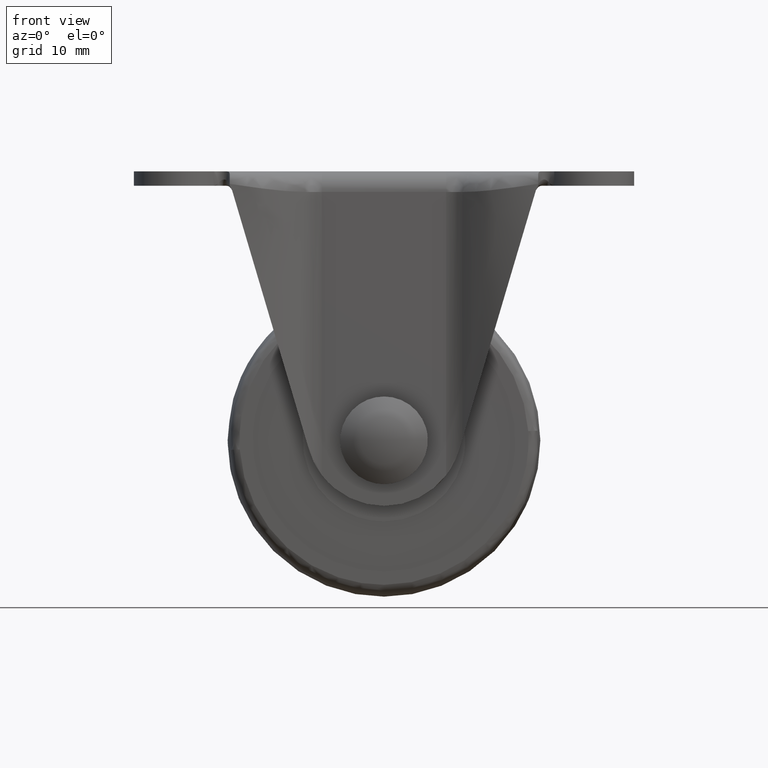
[diagram: clean part render]
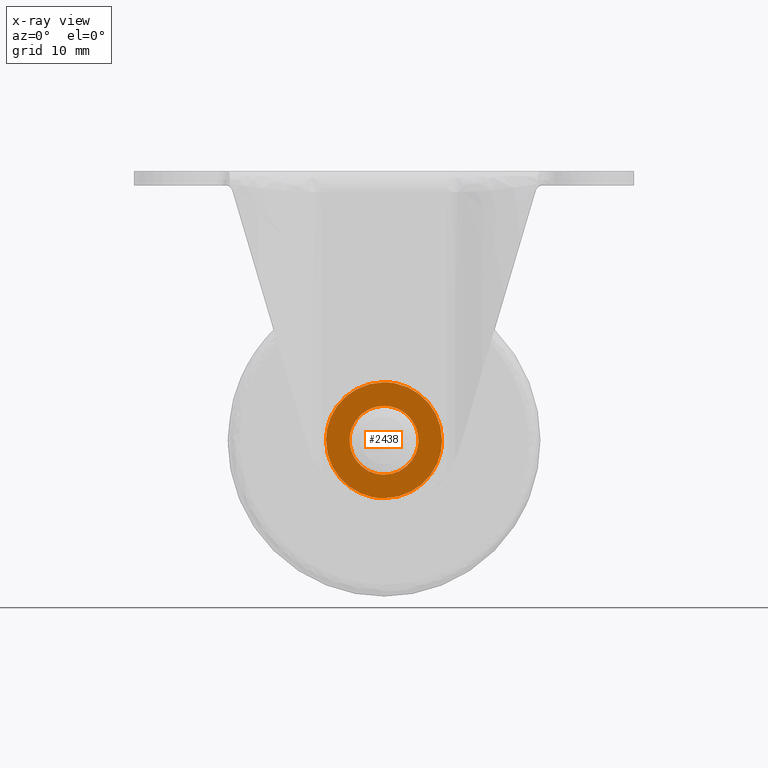
[diagram: x-ray — body ghosted, one internal face saturated and labeled with its STEP entity id]
A machine part, front view, then the same camera in x-ray: the body is ghosted and one INTERNAL B-rep face — a face not visible from any outside direction — is saturated and labeled: STEP entity #2438.
In plain terms, the highlighted face is a freeform B-spline surface patch.
Its self-contained STEP definition (entity closure, byte-faithful):
#2080=CARTESIAN_POINT('',(5.489741391318212,-15.250000000000000,-43.335766967475323));
#2081=VERTEX_POINT('',#2080);
#2087=CARTESIAN_POINT('',(0.0,-15.250000000000000,-37.500000000000000));
#2088=VERTEX_POINT('',#2087);
#2089=CARTESIAN_POINT('',(5.489741391318214,-15.249999999999996,-43.335766967475315));
#2090=CARTESIAN_POINT('',(5.500000000000000,-15.250000000000000,-43.168040198159098));
#2091=CARTESIAN_POINT('',(5.500000000000000,-15.250000000000000,-43.0));
#2092=CARTESIAN_POINT('',(5.500000000000001,-15.249999999999998,-37.499999999999993));
#2093=CARTESIAN_POINT('',(0.0,-15.250000000000000,-37.500000000000000));
#2101=(BOUNDED_CURVE()B_SPLINE_CURVE(2,(#2089,#2090,#2091,#2092,#2093),.UNSPECIFIED.,.F.,.U.)B_SPLINE_CURVE_WITH_KNOTS((3,2,3),(0.239332962240912,0.250000000000000,0.500000000000000),.UNSPECIFIED.)CURVE()GEOMETRIC_REPRESENTATION_ITEM()RATIONAL_B_SPLINE_CURVE((0.976072041670938,0.987502787902144,1.0,0.707106781186548,1.0))REPRESENTATION_ITEM(''));
#2102=EDGE_CURVE('',#2081,#2088,#2101,.T.);
#2104=CARTESIAN_POINT('',(-5.489741391318212,-15.250000000000000,-42.664233032524670));
#2105=VERTEX_POINT('',#2104);
#2106=CARTESIAN_POINT('',(0.0,-15.250000000000000,-37.500000000000000));
#2107=CARTESIAN_POINT('',(-5.173883367949578,-15.250000000000005,-37.500000000000000));
#2108=CARTESIAN_POINT('',(-5.489741391318213,-15.250000000000000,-42.664233032524677));
#2116=(BOUNDED_CURVE()B_SPLINE_CURVE(2,(#2106,#2107,#2108),.UNSPECIFIED.,.F.,.U.)B_SPLINE_CURVE_WITH_KNOTS((3,3),(0.500000000000000,0.739332962240912),.UNSPECIFIED.)CURVE()GEOMETRIC_REPRESENTATION_ITEM()RATIONAL_B_SPLINE_CURVE((1.0,0.719603993284404,0.976072041670937))REPRESENTATION_ITEM(''));
#2117=EDGE_CURVE('',#2088,#2105,#2116,.T.);
#2149=CARTESIAN_POINT('',(0.0,-15.250000000000000,-48.499999999999993));
#2150=VERTEX_POINT('',#2149);
#2151=CARTESIAN_POINT('',(-5.489741391318211,-15.250000000000004,-42.664233032524649));
#2152=CARTESIAN_POINT('',(-5.500000000000000,-15.249999999999998,-42.831959801840895));
#2153=CARTESIAN_POINT('',(-5.500000000000000,-15.250000000000000,-43.0));
#2154=CARTESIAN_POINT('',(-5.500000000000001,-15.249999999999998,-48.500000000000007));
#2155=CARTESIAN_POINT('',(0.0,-15.250000000000000,-48.499999999999993));
#2163=(BOUNDED_CURVE()B_SPLINE_CURVE(2,(#2151,#2152,#2153,#2154,#2155),.UNSPECIFIED.,.F.,.U.)B_SPLINE_CURVE_WITH_KNOTS((3,2,3),(0.739332962240912,0.750000000000000,1.0),.UNSPECIFIED.)CURVE()GEOMETRIC_REPRESENTATION_ITEM()RATIONAL_B_SPLINE_CURVE((0.976072041670937,0.987502787902144,1.0,0.707106781186548,1.0))REPRESENTATION_ITEM(''));
#2164=EDGE_CURVE('',#2105,#2150,#2163,.T.);
#2166=CARTESIAN_POINT('',(0.0,-15.250000000000000,-48.499999999999993));
#2167=CARTESIAN_POINT('',(5.173883367949586,-15.249999999999996,-48.500000000000007));
#2168=CARTESIAN_POINT('',(5.489741391318213,-15.250000000000000,-43.335766967475323));
#2176=(BOUNDED_CURVE()B_SPLINE_CURVE(2,(#2166,#2167,#2168),.UNSPECIFIED.,.F.,.U.)B_SPLINE_CURVE_WITH_KNOTS((3,3),(0.0,0.239332962240912),.UNSPECIFIED.)CURVE()GEOMETRIC_REPRESENTATION_ITEM()RATIONAL_B_SPLINE_CURVE((1.0,0.719603993284403,0.976072041670938))REPRESENTATION_ITEM(''));
#2177=EDGE_CURVE('',#2150,#2081,#2176,.T.);
#2292=CARTESIAN_POINT('',(9.274267689151630,-15.249999999999940,-43.116550020195000));
#2293=VERTEX_POINT('',#2292);
#2307=CARTESIAN_POINT('',(0.0,-15.249999999999879,-52.274999999999999));
#2308=VERTEX_POINT('',#2307);
#2309=CARTESIAN_POINT('',(0.0,-15.249999999999879,-52.274999999999999));
#2310=CARTESIAN_POINT('',(9.159173151750567,-15.249999999999906,-52.275000000026161));
#2311=CARTESIAN_POINT('',(9.274267689151630,-15.249999999999936,-43.116550020195000));
#2319=(BOUNDED_CURVE()B_SPLINE_CURVE(2,(#2309,#2310,#2311),.UNSPECIFIED.,.F.,.U.)B_SPLINE_CURVE_WITH_KNOTS((3,3),(0.0,0.247784295917470),.UNSPECIFIED.)CURVE()GEOMETRIC_REPRESENTATION_ITEM()RATIONAL_B_SPLINE_CURVE((1.0,0.709702639989229,0.994854295634211))REPRESENTATION_ITEM(''));
#2320=EDGE_CURVE('',#2308,#2293,#2319,.T.);
#2322=CARTESIAN_POINT('',(-9.274267689151628,-15.249999999999940,-42.883449979805008));
#2323=VERTEX_POINT('',#2322);
#2324=CARTESIAN_POINT('',(-9.274267689151628,-15.249999999999938,-42.883449979805008));
#2325=CARTESIAN_POINT('',(-9.275000004151135,-15.249999999999932,-42.941722689210749));
#2326=CARTESIAN_POINT('',(-9.275000004138054,-15.249999999999940,-42.999999999947988));
#2327=CARTESIAN_POINT('',(-9.275000002056029,-15.249999999999901,-52.274999999974156));
#2328=CARTESIAN_POINT('',(0.0,-15.249999999999879,-52.274999999999999));
#2336=(BOUNDED_CURVE()B_SPLINE_CURVE(2,(#2324,#2325,#2326,#2327,#2328),.UNSPECIFIED.,.F.,.U.)B_SPLINE_CURVE_WITH_KNOTS((3,2,3),(0.747784295917470,0.750000000000000,1.0),.UNSPECIFIED.)CURVE()GEOMETRIC_REPRESENTATION_ITEM()RATIONAL_B_SPLINE_CURVE((0.994854295634211,0.997404141197319,1.0,0.707106781186548,1.0))REPRESENTATION_ITEM(''));
#2337=EDGE_CURVE('',#2323,#2308,#2336,.T.);
#2386=CARTESIAN_POINT('',(0.0,-15.250000000000000,-33.725000000000001));
#2387=VERTEX_POINT('',#2386);
#2388=CARTESIAN_POINT('',(0.0,-15.250000000000000,-33.725000000000001));
#2389=CARTESIAN_POINT('',(-9.159173151750572,-15.249999999999968,-33.724999999973832));
#2390=CARTESIAN_POINT('',(-9.274267689151628,-15.249999999999941,-42.883449979805008));
#2398=(BOUNDED_CURVE()B_SPLINE_CURVE(2,(#2388,#2389,#2390),.UNSPECIFIED.,.F.,.U.)B_SPLINE_CURVE_WITH_KNOTS((3,3),(0.500000000000000,0.747784295917470),.UNSPECIFIED.)CURVE()GEOMETRIC_REPRESENTATION_ITEM()RATIONAL_B_SPLINE_CURVE((1.0,0.709702639989229,0.994854295634211))REPRESENTATION_ITEM(''));
#2399=EDGE_CURVE('',#2387,#2323,#2398,.T.);
#2401=CARTESIAN_POINT('',(9.274267689151630,-15.249999999999938,-43.116550020195000));
#2402=CARTESIAN_POINT('',(9.275000004151139,-15.249999999999936,-43.058277310789244));
#2403=CARTESIAN_POINT('',(9.275000004138057,-15.249999999999940,-43.000000000052012));
#2404=CARTESIAN_POINT('',(9.275000002056029,-15.249999999999972,-33.725000000025844));
#2405=CARTESIAN_POINT('',(0.0,-15.250000000000000,-33.725000000000001));
#2413=(BOUNDED_CURVE()B_SPLINE_CURVE(2,(#2401,#2402,#2403,#2404,#2405),.UNSPECIFIED.,.F.,.U.)B_SPLINE_CURVE_WITH_KNOTS((3,2,3),(0.247784295917470,0.250000000000000,0.500000000000000),.UNSPECIFIED.)CURVE()GEOMETRIC_REPRESENTATION_ITEM()RATIONAL_B_SPLINE_CURVE((0.994854295634211,0.997404141197318,1.0,0.707106781186548,1.0))REPRESENTATION_ITEM(''));
#2414=EDGE_CURVE('',#2293,#2387,#2413,.T.);
#2421=CARTESIAN_POINT('',(-10.200766995347220,-15.250000000000000,-32.798427535953508));
#2422=CARTESIAN_POINT('',(-10.200766995347220,-15.250000000000000,-53.201572961596270));
#2423=CARTESIAN_POINT('',(10.200767492857709,-15.250000000000000,-32.798427535953508));
#2424=CARTESIAN_POINT('',(10.200767492857709,-15.250000000000000,-53.201572961596270));
#2425=B_SPLINE_SURFACE_WITH_KNOTS('',1,1,((#2421,#2423),(#2422,#2424)),.UNSPECIFIED.,.F.,.F.,.U.,(2,2),(2,2),(0.0,20.403145425642759),(0.0,20.401534488204920),.UNSPECIFIED.);
#2426=ORIENTED_EDGE('',*,*,#2320,.T.);
#2427=ORIENTED_EDGE('',*,*,#2414,.T.);
#2428=ORIENTED_EDGE('',*,*,#2399,.T.);
#2429=ORIENTED_EDGE('',*,*,#2337,.T.);
#2430=EDGE_LOOP('',(#2426,#2427,#2428,#2429));
#2431=FACE_OUTER_BOUND('',#2430,.T.);
#2432=ORIENTED_EDGE('',*,*,#2117,.F.);
#2433=ORIENTED_EDGE('',*,*,#2102,.F.);
#2434=ORIENTED_EDGE('',*,*,#2177,.F.);
#2435=ORIENTED_EDGE('',*,*,#2164,.F.);
#2436=EDGE_LOOP('',(#2432,#2433,#2434,#2435));
#2437=FACE_BOUND('',#2436,.T.);
#2438=ADVANCED_FACE('',(#2431,#2437),#2425,.T.);